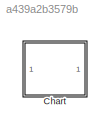
MODEL slx_a439a2b3579b
KIND model
CONFIG AbsTol = auto
CONFIG EnableMultiTasking = off
CONFIG FixedStep = auto
CONFIG MaxStep = auto
CONFIG MinStep = auto
CONFIG RelTol = 1e-3
CONFIG SampleTimeConstraint = Unconstrained
CONFIG SolverName = VariableStepAuto
CONFIG StartTime = 0.0
CONFIG StopTime = 10.0
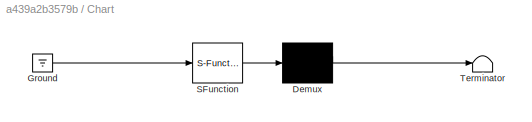
BLOCK [SubSystem] Chart
  ErrorFcn = Stateflow.Translate.translate
  PermitHierarchicalResolution = ExplicitOnly
  SFBlockType = Chart
  TreatAsAtomicUnit = on
BLOCK [Demux] Chart/ Demux 
  Outputs = 1
BLOCK [Ground] Chart/ Ground 
BLOCK [S-Function] Chart/ SFunction 
  EnableBusSupport = off
  FunctionName = sf_sfun
  Parameters = IR
  PortCounts = [1 1]
  SFcnIsStateOwnerBlock = off
  SFunctionDeploymentMode = off
  Tag = Stateflow S-Function 3
BLOCK [Terminator] Chart/ Terminator 
CHART Chart states=17 transitions=30
  STATE_LABEL 'Difficulty_Selection'
  STATE_LABEL "Selected_Difficulty\ndisplay_line1 = 'Selected Diff:';\ndisplay_line2 = ['Level: ' num2str(difficulty_value)];\n"
  STATE_LABEL 'Inital_Difficulty\ndisplay_line1 = "Difficuly";\ndisplay_line2 = "Selection";'
  STATE_LABEL 'Change_Difficulty\ndisplay_line1 = "Press Red: Change";\ndisplay_line2 = "Press Blue: Start";'
  STATE_LABEL '{timer = 0}'
  STATE_LABEL '[red_button]{changeLevel()}'
  STATE_LABEL '[timer > 3]'
  STATE_LABEL "Selected_Difficulty\ndisplay_line1 = 'Selected Diff:';\ndisplay_line2 = ['Level: ' num2str(difficulty_value)];\n"
  STATE_LABEL 'Inital_Difficulty\ndisplay_line1 = "Difficuly";\ndisplay_line2 = "Selection";'
  STATE_LABEL 'Change_Difficulty\ndisplay_line1 = "Press Red: Change";\ndisplay_line2 = "Press Blue: Start";'
  STATE_LABEL 'Idle\ndisplay_line1="Reload and Press";\ndisplay_line2="Button to Start";'
  STATE_LABEL 'In_Game'
  STATE_LABEL 'Human_Turn\ndisplay_line1 = "Waiting for";\ndisplay_line2 = "your Move";'
  STATE_LABEL 'Initial_IR'
  STATE_LABEL 'Triggered_IR\ntriggered_IR = IR;'
  STATE_LABEL 'Wait_IR'
  STATE_LABEL '[IR~=triggered_IR && ~timer_2]{timer_2 = 0}'
  STATE_LABEL '[IR]{timer_1 = 0}'
  STATE_LABEL '[IR~=triggered_IR && timer_2<0.01]'
  STATE_LABEL '[IR~=triggered_IR] && timer_2=>0.01'
  STATE_LABEL '[IR~=triggered_IR] && timer_2=>0.01'
  STATE_LABEL '[timer_1 > 0.02]{timer_1 = 0}'
  STATE_LABEL '[IR == triggered_IR]{~timer_2}'
  STATE_LABEL '[IR~=triggered_IR && ~timer_2]{timer_2 = 0}'
  STATE_LABEL '[IR == triggered_IR]{~timer_2}'
  STATE_LABEL '[IR~=triggered_IR && timer_2<0.01]'
  STATE_LABEL 'Game_Engine\ndisplay_line1 = "Computing";\ndisplay_line2 = "AI Move";\nupdateBoard(human_col);\nAI_col = getBestMove();'
  STATE_LABEL 'AI_Turn\ndisplay_line1 = "Machine executes";\ndisplay_line2 = "Move";'
  STATE_LABEL 'Move_to_Mag\nmotor_to_mag(AI_col)'
  STATE_LABEL 'Positioning'
  STATE_LABEL 'Initial_Move_to_Mag\nmotor(dir = -1, speed = 10);'
  STATE_LABEL 'Move_to_AI_col\nmotor_to_col(AI_col);'
  STATE_LABEL '[complete]{~electromagnet}'
  STATE_LABEL '[limit_switch1]{electromagnet}'
  STATE_LABEL '[~limit_switch1]'
  STATE_LABEL '[limit_switch1]{elecromagnet}'
  STATE_LABEL '[timer_1 > 2]{human_col = triggered_IR}'
  STATE_LABEL '[limit_switch1]'
  STATE_LABEL '[complete]'
  STATE_LABEL 'Human_Turn\ndisplay_line1 = "Waiting for";\ndisplay_line2 = "your Move";'
CHART  states=0 transitions=0
